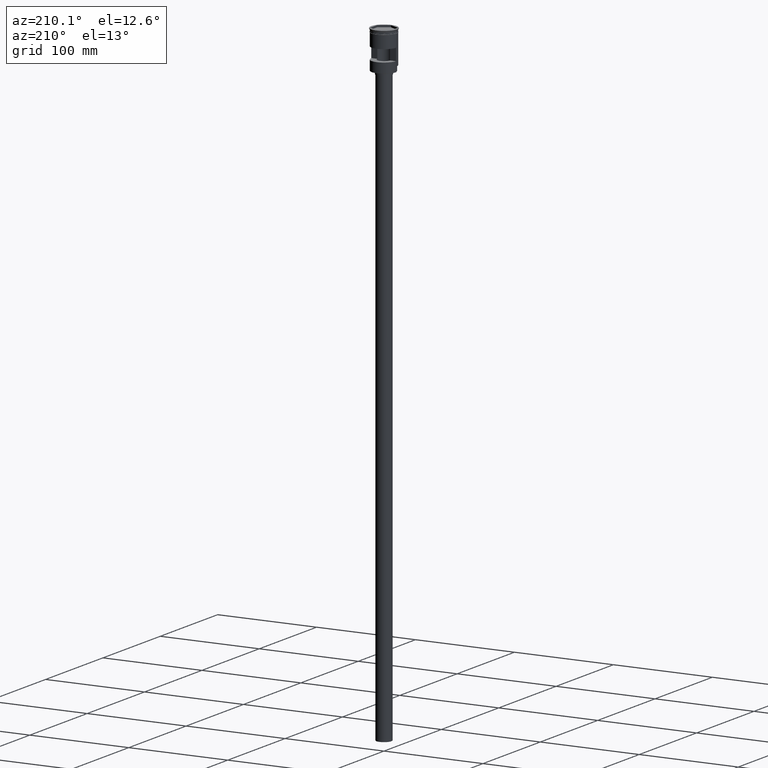
[diagram: clean part render]
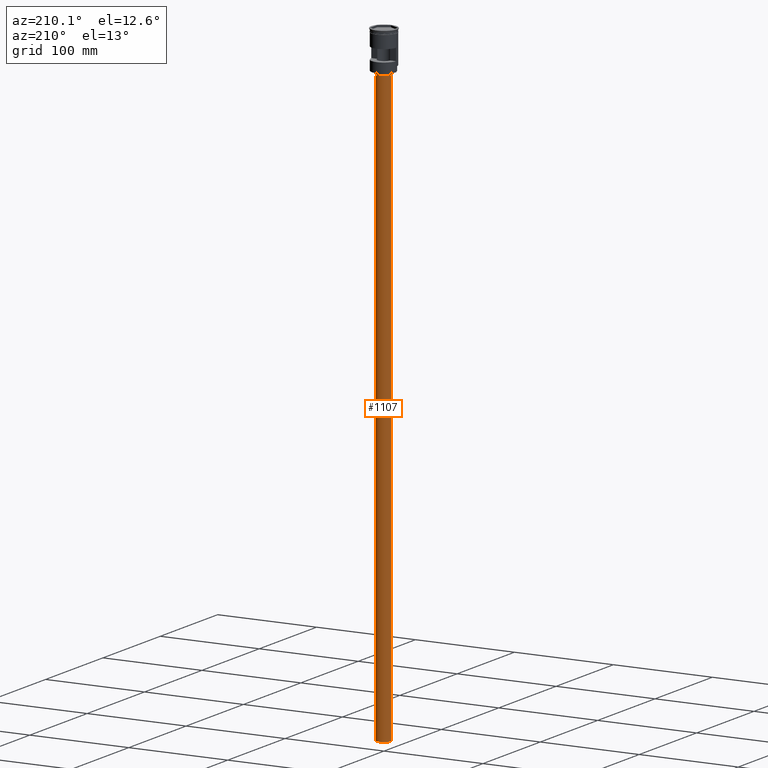
[diagram: same view with one face highlighted and labeled with its STEP entity id]
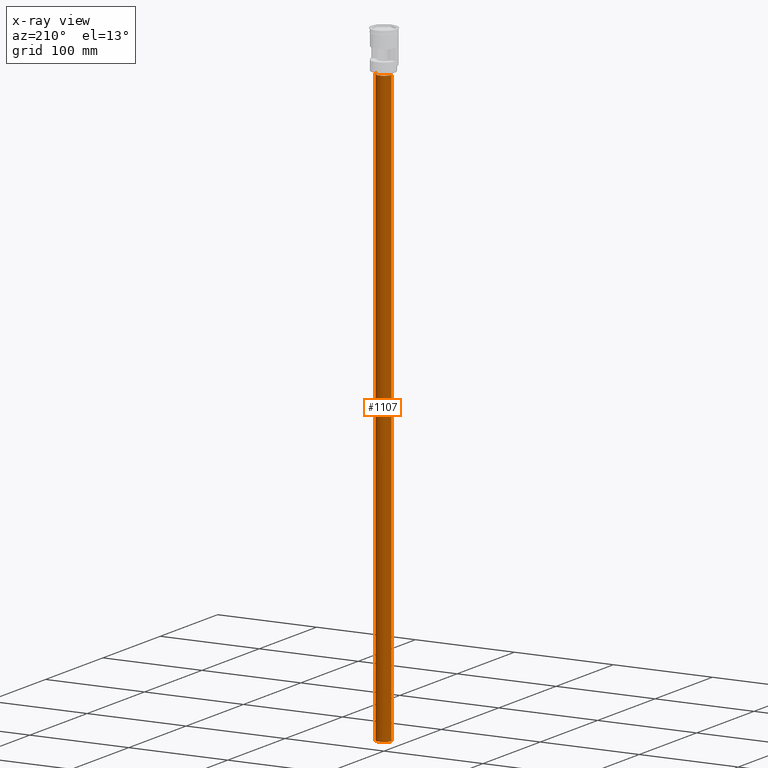
[diagram: x-ray of the same camera — body ghosted, the highlighted face saturated]
A machine part, auxiliary view. The second image highlights one B-rep face of the part: STEP entity #1107.
The next image is the same camera in x-ray: the body ghosted, the highlighted face saturated — about 0% of this face is hidden behind the body in this view.
In plain terms, the highlighted cylindrical surface (edge-blend (fillet) strip) has radius 7.5 mm, axis along (-0, -0, 1).
Its self-contained STEP definition (entity closure, byte-faithful):
#35 = VERTEX_POINT ( 'NONE', #422 ) ;
#99 = CARTESIAN_POINT ( 'NONE',  ( -7.500000000000000000, 9.184850993605147944E-16, -41.50000000000000000 ) ) ;
#201 = CARTESIAN_POINT ( 'NONE',  ( 0.000000000000000000, 0.000000000000000000, -638.5000000000000000 ) ) ;
#220 = EDGE_CURVE ( 'NONE', #325, #599, #788, .T. ) ;
#241 = AXIS2_PLACEMENT_3D ( 'NONE', #1291, #815, #461 ) ;
#325 = VERTEX_POINT ( 'NONE', #99 ) ;
#408 = DIRECTION ( 'NONE',  ( 0.000000000000000000, 0.000000000000000000, -1.000000000000000000 ) ) ;
#422 = CARTESIAN_POINT ( 'NONE',  ( 7.500000000000000000, 0.000000000000000000, -638.5000000000000000 ) ) ;
#432 = DIRECTION ( 'NONE',  ( -1.000000000000000000, 0.000000000000000000, 0.000000000000000000 ) ) ;
#445 = LINE ( 'NONE', #1164, #1383 ) ;
#461 = DIRECTION ( 'NONE',  ( -1.000000000000000000, 0.000000000000000000, 0.000000000000000000 ) ) ;
#529 = CYLINDRICAL_SURFACE ( 'NONE', #881, 7.500000000000000000 ) ;
#530 = DIRECTION ( 'NONE',  ( -0.000000000000000000, -0.000000000000000000, 1.000000000000000000 ) ) ;
#539 = EDGE_CURVE ( 'NONE', #1194, #325, #1359, .T. ) ;
#557 = CIRCLE ( 'NONE', #1602, 7.500000000000000000 ) ;
#599 = VERTEX_POINT ( 'NONE', #879 ) ;
#627 = CARTESIAN_POINT ( 'NONE',  ( -7.500000000000000000, 9.184850993605147944E-16, -638.5000000000000000 ) ) ;
#671 = CARTESIAN_POINT ( 'NONE',  ( 0.000000000000000000, 0.000000000000000000, -638.5000000000000000 ) ) ;
#788 = CIRCLE ( 'NONE', #241, 7.500000000000000000 ) ;
#800 = DIRECTION ( 'NONE',  ( -0.000000000000000000, -0.000000000000000000, 1.000000000000000000 ) ) ;
#801 = ORIENTED_EDGE ( 'NONE', *, *, #1441, .F. ) ;
#815 = DIRECTION ( 'NONE',  ( 0.000000000000000000, 0.000000000000000000, -1.000000000000000000 ) ) ;
#879 = CARTESIAN_POINT ( 'NONE',  ( 7.500000000000000000, 0.000000000000000000, -41.50000000000000000 ) ) ;
#881 = AXIS2_PLACEMENT_3D ( 'NONE', #671, #1402, #1157 ) ;
#963 = ORIENTED_EDGE ( 'NONE', *, *, #1117, .F. ) ;
#1070 = ORIENTED_EDGE ( 'NONE', *, *, #220, .T. ) ;
#1083 = CARTESIAN_POINT ( 'NONE',  ( -7.500000000000000000, 9.184850993605147944E-16, -638.5000000000000000 ) ) ;
#1107 = ADVANCED_FACE ( 'NONE', ( #1538 ), #529, .T. ) ;
#1117 = EDGE_CURVE ( 'NONE', #35, #599, #445, .T. ) ;
#1157 = DIRECTION ( 'NONE',  ( 1.000000000000000000, 0.000000000000000000, 0.000000000000000000 ) ) ;
#1164 = CARTESIAN_POINT ( 'NONE',  ( 7.500000000000000000, 0.000000000000000000, -638.5000000000000000 ) ) ;
#1194 = VERTEX_POINT ( 'NONE', #1083 ) ;
#1198 = EDGE_LOOP ( 'NONE', ( #801, #1481, #1070, #963 ) ) ;
#1291 = CARTESIAN_POINT ( 'NONE',  ( 0.000000000000000000, 0.000000000000000000, -41.50000000000000000 ) ) ;
#1359 = LINE ( 'NONE', #627, #1408 ) ;
#1383 = VECTOR ( 'NONE', #800, 1000.000000000000000 ) ;
#1402 = DIRECTION ( 'NONE',  ( -0.000000000000000000, -0.000000000000000000, 1.000000000000000000 ) ) ;
#1408 = VECTOR ( 'NONE', #530, 1000.000000000000000 ) ;
#1441 = EDGE_CURVE ( 'NONE', #1194, #35, #557, .T. ) ;
#1481 = ORIENTED_EDGE ( 'NONE', *, *, #539, .T. ) ;
#1538 = FACE_OUTER_BOUND ( 'NONE', #1198, .T. ) ;
#1602 = AXIS2_PLACEMENT_3D ( 'NONE', #201, #408, #432 ) ;